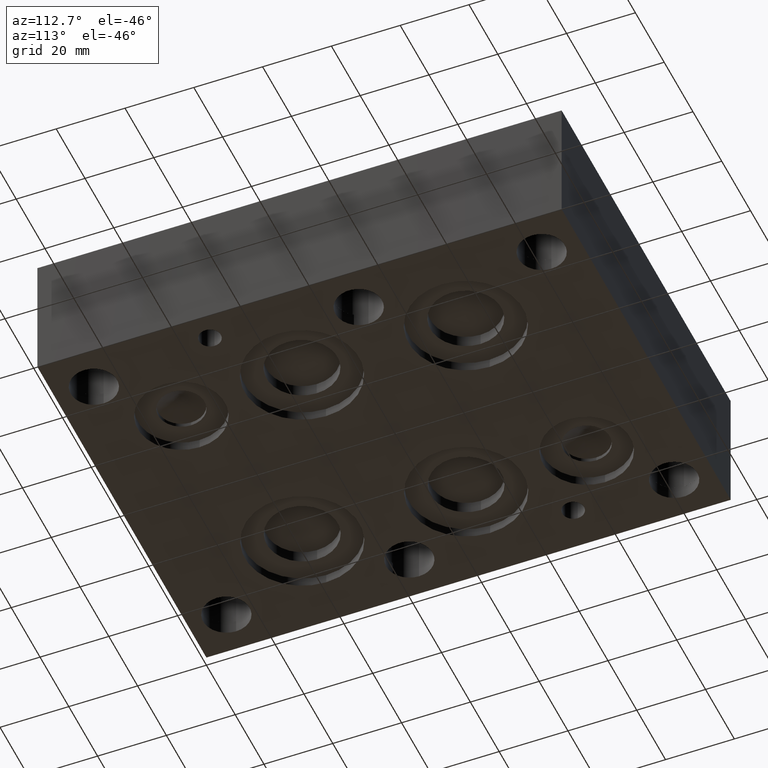
[diagram: clean part render]
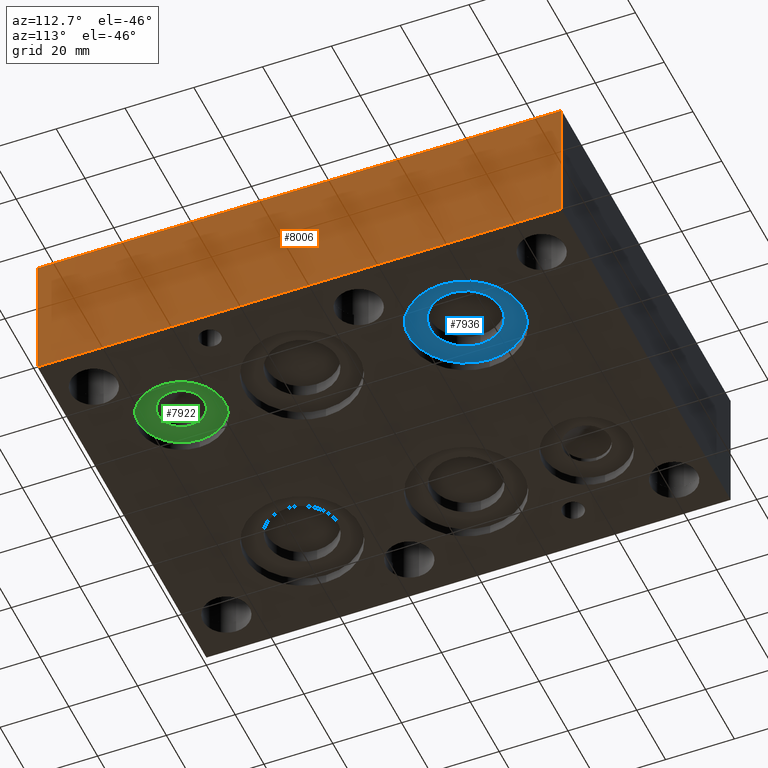
[diagram: same view with three faces highlighted in distinct colors, each labeled with its STEP entity id]
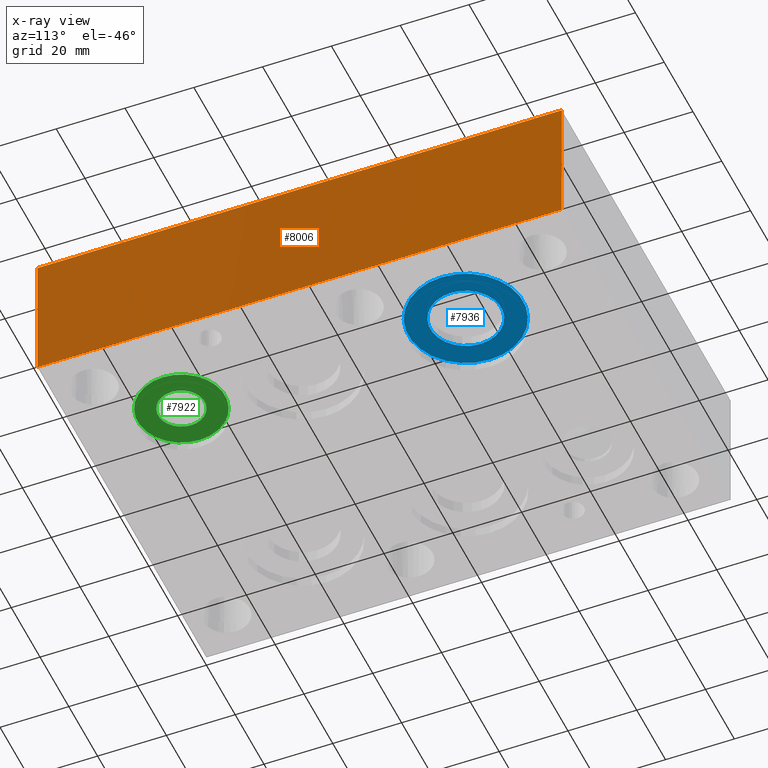
[diagram: x-ray of the same camera — body ghosted, the three highlighted faces saturated]
A machine part, auxiliary view with three faces highlighted in distinct colors.
The next image is the same camera in x-ray (body ghosted, the three faces saturated) — at least one of them is partly hidden behind the body in this view.
Their STEP definitions:

[orange] entity #8006 — the highlighted planar face has unit normal (1, 0, 0).
#977=FACE_OUTER_BOUND('',#1462,.T.);
#1462=EDGE_LOOP('',(#6975,#6976,#6977,#6978));
#1858=LINE('',#10966,#2637);
#2219=LINE('',#13517,#2998);
#2257=LINE('',#13716,#3036);
#2258=LINE('',#13718,#3037);
#2637=VECTOR('',#9090,10.);
#2998=VECTOR('',#9813,10.);
#3036=VECTOR('',#10053,10.);
#3037=VECTOR('',#10056,10.);
#3301=VERTEX_POINT('',#10963);
#3302=VERTEX_POINT('',#10965);
#3702=VERTEX_POINT('',#13515);
#3762=VERTEX_POINT('',#13714);
#4157=EDGE_CURVE('',#3301,#3302,#1858,.T.);
#4749=EDGE_CURVE('',#3301,#3702,#2219,.T.);
#4842=EDGE_CURVE('',#3702,#3762,#2257,.T.);
#4843=EDGE_CURVE('',#3302,#3762,#2258,.T.);
#6975=ORIENTED_EDGE('',*,*,#4749,.T.);
#6976=ORIENTED_EDGE('',*,*,#4842,.T.);
#6977=ORIENTED_EDGE('',*,*,#4843,.F.);
#6978=ORIENTED_EDGE('',*,*,#4157,.F.);
#7262=PLANE('',#8441);
#8006=ADVANCED_FACE('',(#977),#7262,.T.);
#8441=AXIS2_PLACEMENT_3D('',#13717,#10054,#10055);
#9090=DIRECTION('',(0.,0.,1.));
#9813=DIRECTION('',(0.,1.,0.));
#10053=DIRECTION('',(0.,0.,1.));
#10054=DIRECTION('center_axis',(1.,0.,0.));
#10055=DIRECTION('ref_axis',(0.,1.,0.));
#10056=DIRECTION('',(0.,1.,0.));
#10963=CARTESIAN_POINT('',(117.475,0.,0.));
#10965=CARTESIAN_POINT('',(117.475,0.,38.1));
#10966=CARTESIAN_POINT('',(117.475,0.,0.));
#13515=CARTESIAN_POINT('',(117.475,152.4,0.));
#13517=CARTESIAN_POINT('',(117.475,0.,0.));
#13714=CARTESIAN_POINT('',(117.475,152.4,38.1));
#13716=CARTESIAN_POINT('',(117.475,152.4,0.));
#13717=CARTESIAN_POINT('Origin',(117.475,0.,0.));
#13718=CARTESIAN_POINT('',(117.475,0.,38.1));

[blue] entity #7936 — the highlighted planar face has unit normal (0, 0, -1).
#43=CIRCLE('',#8278,10.3251);
#52=CIRCLE('',#8295,16.6751);
#516=FACE_BOUND('',#1367,.T.);
#907=FACE_OUTER_BOUND('',#1366,.T.);
#1366=EDGE_LOOP('',(#6694));
#1367=EDGE_LOOP('',(#6695));
#3654=VERTEX_POINT('',#13241);
#3663=VERTEX_POINT('',#13271);
#4684=EDGE_CURVE('',#3654,#3654,#43,.T.);
#4698=EDGE_CURVE('',#3663,#3663,#52,.T.);
#6694=ORIENTED_EDGE('',*,*,#4698,.T.);
#6695=ORIENTED_EDGE('',*,*,#4684,.T.);
#7247=PLANE('',#8296);
#7936=ADVANCED_FACE('',(#907,#516),#7247,.T.);
#8278=AXIS2_PLACEMENT_3D('',#13242,#9661,#9662);
#8295=AXIS2_PLACEMENT_3D('',#13273,#9700,#9701);
#8296=AXIS2_PLACEMENT_3D('',#13274,#9702,#9703);
#9661=DIRECTION('center_axis',(0.,0.,1.));
#9662=DIRECTION('ref_axis',(1.,0.,0.));
#9700=DIRECTION('center_axis',(0.,0.,-1.));
#9701=DIRECTION('ref_axis',(1.,0.,0.));
#9702=DIRECTION('center_axis',(0.,0.,-1.));
#9703=DIRECTION('ref_axis',(1.,0.,0.));
#13241=CARTESIAN_POINT('',(76.9874,111.9251,2.794));
#13242=CARTESIAN_POINT('Origin',(87.3125,111.9251,2.794));
#13271=CARTESIAN_POINT('',(70.6374,111.9251,2.794));
#13273=CARTESIAN_POINT('Origin',(87.3125,111.9251,2.794));
#13274=CARTESIAN_POINT('Origin',(87.3125,111.9251,2.794));

[green] entity #7922 — the highlighted planar face has unit normal (0, 0, -1).
#37=CIRCLE('',#8266,12.7);
#38=CIRCLE('',#8268,6.7437);
#513=FACE_BOUND('',#1350,.T.);
#893=FACE_OUTER_BOUND('',#1349,.T.);
#1349=EDGE_LOOP('',(#6656));
#1350=EDGE_LOOP('',(#6657));
#3648=VERTEX_POINT('',#13220);
#3649=VERTEX_POINT('',#13224);
#4676=EDGE_CURVE('',#3648,#3648,#37,.T.);
#4677=EDGE_CURVE('',#3649,#3649,#38,.T.);
#6656=ORIENTED_EDGE('',*,*,#4676,.T.);
#6657=ORIENTED_EDGE('',*,*,#4677,.F.);
#7240=PLANE('',#8267);
#7922=ADVANCED_FACE('',(#893,#513),#7240,.T.);
#8266=AXIS2_PLACEMENT_3D('',#13222,#9635,#9636);
#8267=AXIS2_PLACEMENT_3D('',#13223,#9637,#9638);
#8268=AXIS2_PLACEMENT_3D('',#13225,#9639,#9640);
#9635=DIRECTION('center_axis',(0.,0.,-1.));
#9636=DIRECTION('ref_axis',(1.,0.,0.));
#9637=DIRECTION('center_axis',(0.,0.,-1.));
#9638=DIRECTION('ref_axis',(1.,0.,0.));
#9639=DIRECTION('center_axis',(0.,0.,-1.));
#9640=DIRECTION('ref_axis',(1.,0.,0.));
#13220=CARTESIAN_POINT('',(73.0377,28.5877,2.794));
#13222=CARTESIAN_POINT('Origin',(85.7377,28.5877,2.794));
#13223=CARTESIAN_POINT('Origin',(85.7377,28.5877,2.794));
#13224=CARTESIAN_POINT('',(78.9813,28.5877,2.794));
#13225=CARTESIAN_POINT('Origin',(85.725,28.5877,2.794));